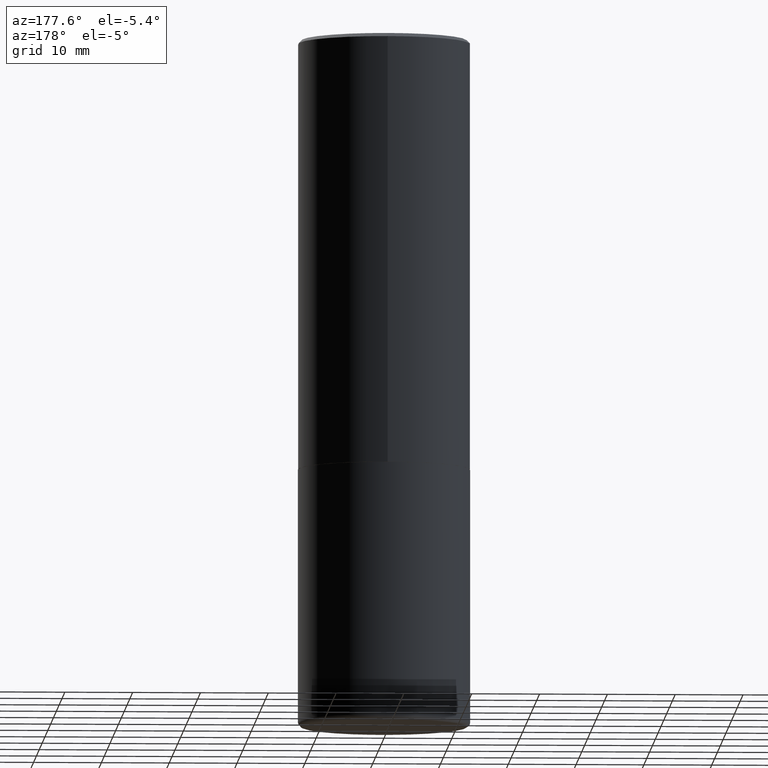
[diagram: clean part render]
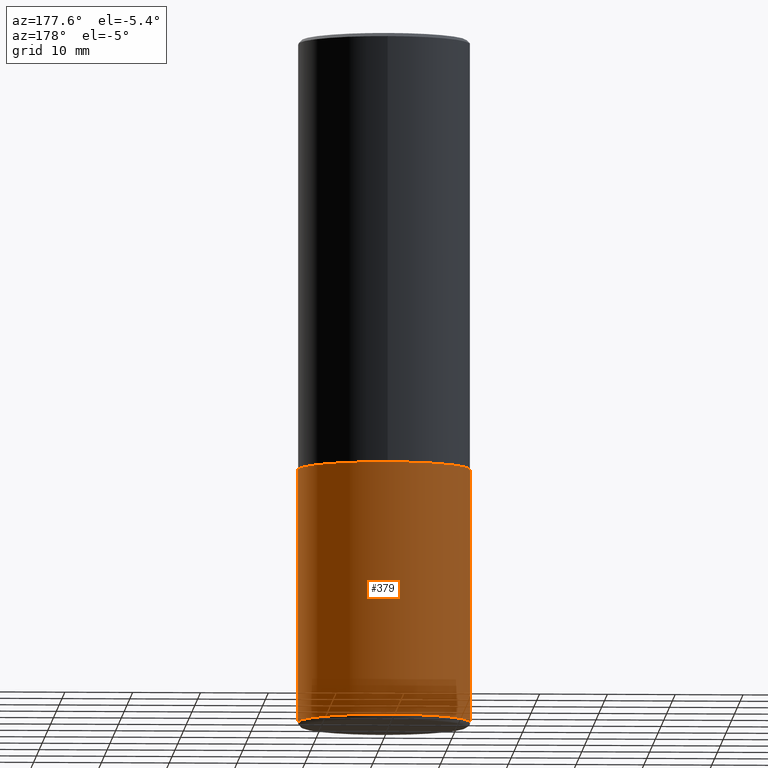
[diagram: same view with one face highlighted and labeled with its STEP entity id]
A machine part, auxiliary view. The second image highlights one B-rep face of the part: STEP entity #379.
In plain terms, the highlighted cylindrical surface (partial cylindrical patch) has radius 12.7 mm, axis along (-0, 0, 1).
Its self-contained STEP definition (entity closure, byte-faithful):
#12 = CARTESIAN_POINT ( 'NONE',  ( -0.5000000000000000000, -1.030846723640678645E-14, -3.970000000000000195 ) ) ;
#15 = DIRECTION ( 'NONE',  ( -2.445468806185136597E-29, 3.491481338843145583E-15, 1.000000000000000000 ) ) ;
#19 = CARTESIAN_POINT ( 'NONE',  ( -0.5000000000000000000, -7.742228452357075234E-15, -2.500000000000000000 ) ) ;
#52 = CARTESIAN_POINT ( 'NONE',  ( 0.000000000000000000, 0.000000000000000000, 0.000000000000000000 ) ) ;
#55 = AXIS2_PLACEMENT_3D ( 'NONE', #52, #15, #407 ) ;
#75 = DIRECTION ( 'NONE',  ( -2.445468806185136877E-29, 3.491481338843145188E-15, 1.000000000000000000 ) ) ;
#98 = EDGE_CURVE ( 'NONE', #128, #287, #199, .T. ) ;
#112 = CARTESIAN_POINT ( 'NONE',  ( -0.5000000000000000000, 3.552713678800500929E-15, -2.459467545127452891E-29 ) ) ;
#119 = VERTEX_POINT ( 'NONE', #375 ) ;
#126 = VERTEX_POINT ( 'NONE', #298 ) ;
#128 = VERTEX_POINT ( 'NONE', #12 ) ;
#134 = DIRECTION ( 'NONE',  ( 1.000000000000000000, -6.982962677686269077E-15, 0.000000000000000000 ) ) ;
#174 = EDGE_CURVE ( 'NONE', #119, #287, #358, .T. ) ;
#199 = LINE ( 'NONE', #112, #334 ) ;
#201 = DIRECTION ( 'NONE',  ( -2.445468806185136597E-29, 3.491481338843145583E-15, 1.000000000000000000 ) ) ;
#202 = CARTESIAN_POINT ( 'NONE',  ( 9.708511160554992872E-29, -1.386118091520728738E-14, -3.970000000000000195 ) ) ;
#230 = ORIENTED_EDGE ( 'NONE', *, *, #174, .F. ) ;
#234 = EDGE_CURVE ( 'NONE', #126, #119, #332, .T. ) ;
#240 = VECTOR ( 'NONE', #244, 39.37007874015748143 ) ;
#244 = DIRECTION ( 'NONE',  ( -2.445468806185136877E-29, 3.491481338843145188E-15, 1.000000000000000000 ) ) ;
#258 = CIRCLE ( 'NONE', #343, 0.5000000000000001110 ) ;
#259 = ORIENTED_EDGE ( 'NONE', *, *, #98, .T. ) ;
#271 = FACE_OUTER_BOUND ( 'NONE', #319, .T. ) ;
#273 = CARTESIAN_POINT ( 'NONE',  ( 0.5000000000000000000, -3.491481338843133355E-15, 2.438088387897967896E-29 ) ) ;
#284 = ORIENTED_EDGE ( 'NONE', *, *, #330, .T. ) ;
#287 = VERTEX_POINT ( 'NONE', #19 ) ;
#298 = CARTESIAN_POINT ( 'NONE',  ( 0.5000000000000000000, -1.735266225405042074E-14, -3.970000000000000195 ) ) ;
#306 = DIRECTION ( 'NONE',  ( -2.445468806185136597E-29, 3.491481338843145583E-15, 1.000000000000000000 ) ) ;
#308 = CYLINDRICAL_SURFACE ( 'NONE', #55, 0.5000000000000000000 ) ;
#319 = EDGE_LOOP ( 'NONE', ( #284, #259, #230, #387 ) ) ;
#330 = EDGE_CURVE ( 'NONE', #126, #128, #258, .T. ) ;
#332 = LINE ( 'NONE', #273, #240 ) ;
#334 = VECTOR ( 'NONE', #75, 39.37007874015748143 ) ;
#343 = AXIS2_PLACEMENT_3D ( 'NONE', #202, #306, #400 ) ;
#358 = CIRCLE ( 'NONE', #364, 0.5000000000000000000 ) ;
#364 = AXIS2_PLACEMENT_3D ( 'NONE', #372, #201, #134 ) ;
#372 = CARTESIAN_POINT ( 'NONE',  ( 6.113672015462842613E-29, -8.728703347107864943E-15, -2.500000000000000000 ) ) ;
#375 = CARTESIAN_POINT ( 'NONE',  ( 0.5000000000000000000, -1.222018468595099830E-14, -2.500000000000000000 ) ) ;
#379 = ADVANCED_FACE ( 'NONE', ( #271 ), #308, .T. ) ;
#387 = ORIENTED_EDGE ( 'NONE', *, *, #234, .F. ) ;
#400 = DIRECTION ( 'NONE',  ( 1.000000000000000000, -6.982962677686265133E-15, 0.000000000000000000 ) ) ;
#407 = DIRECTION ( 'NONE',  ( 1.000000000000000000, -6.982962677686266711E-15, 4.876176775795935793E-29 ) ) ;